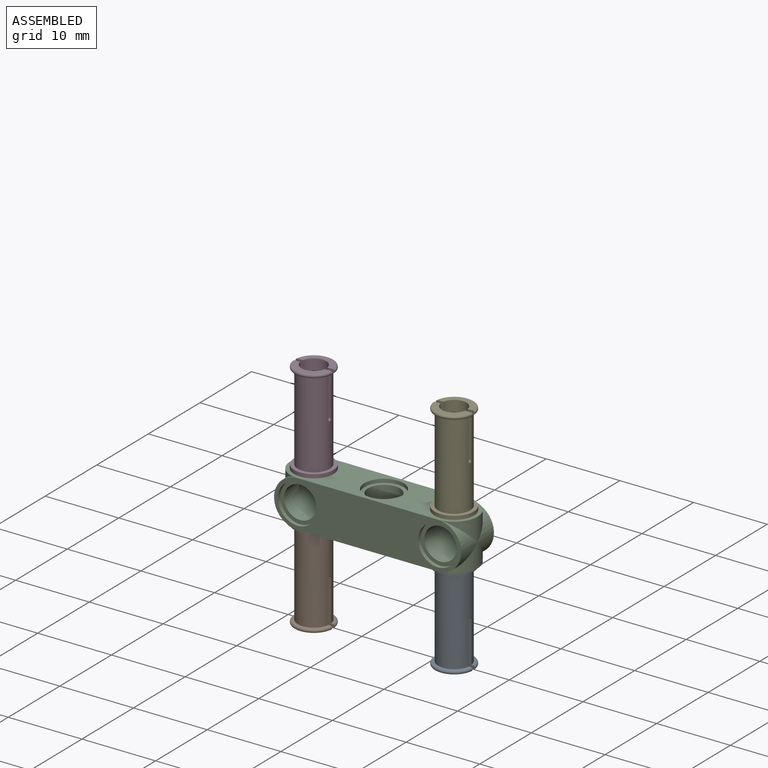
[diagram: assembled view]
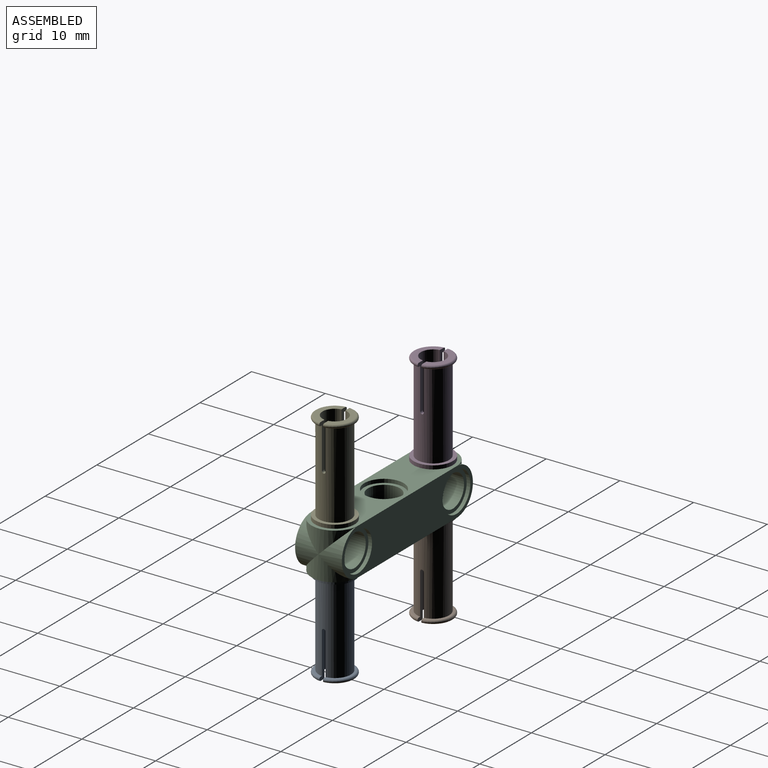
[diagram: assembled view, second angle]
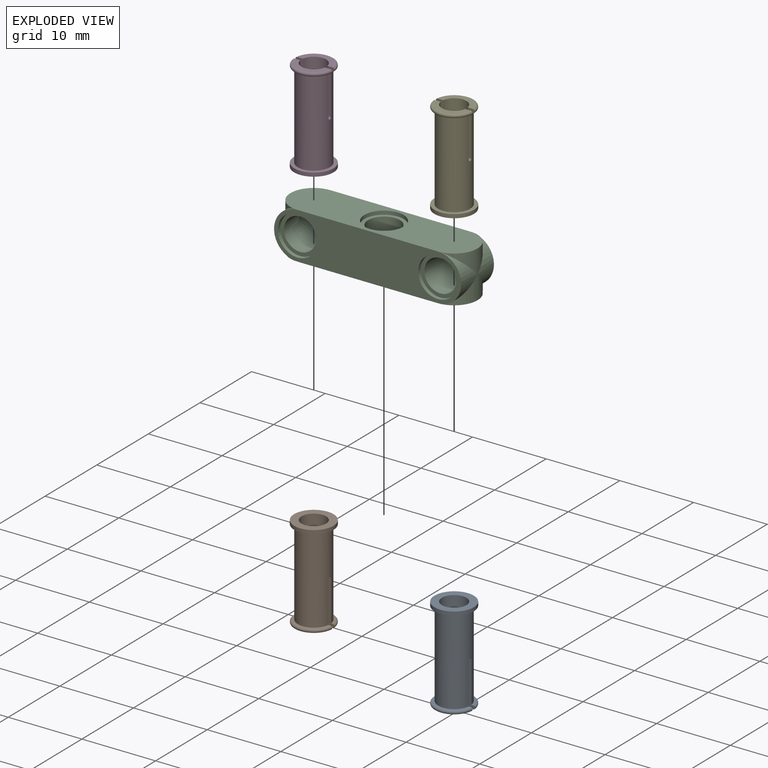
[diagram: exploded view]
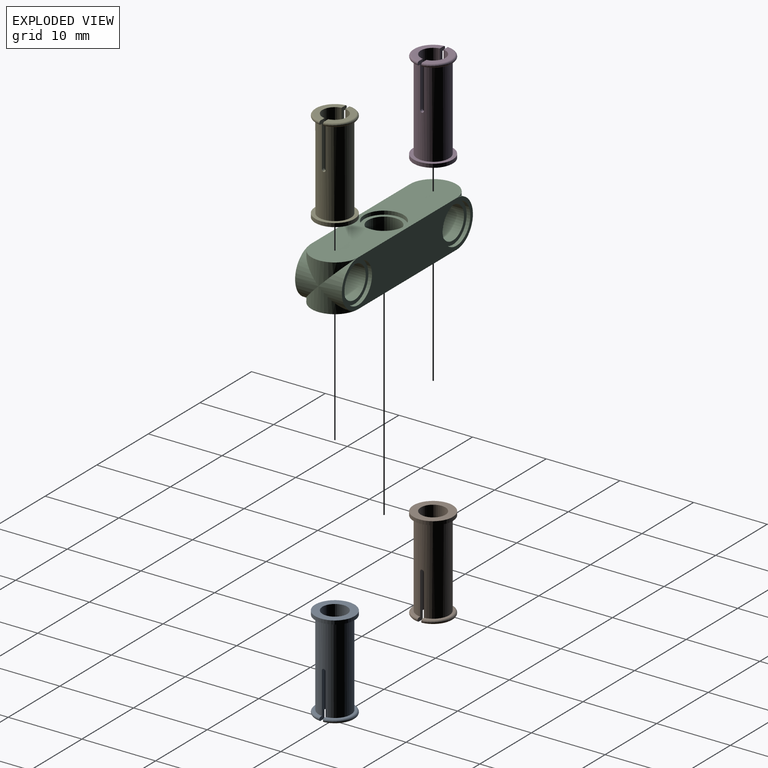
[diagram: exploded view, second angle]
ASSEMBLY  parts=5 mates=8
PART A: 21 faces, bbox 5.8x5.8x12.7 mm
  f0: plane 4.82x2.18mm, normal (0,0,1), area 4.5mm2, adj f2,f8,f11,f20
  f1: plane 4.82x2.18mm, normal (0,0,-1), area 1.7mm2, adj f2,f3,f11,f20
  f2: torus R=2.43mm, axis (0,0,1), area 6mm2, adj f0,f1,f11,f20
  f3: cylinder r=2.17mm len=11.7mm, axis (0,0,-1), area 154.1mm2, adj f1,f5,f9,f11,f12,f13,f14,f15
  f4: cylinder r=2.67mm len=5.35mm, axis (0,0,-1), area 8.4mm2, adj f5,f6
  f5: plane 5.35x5.35mm, normal (0,0,1), area 7.6mm2, adj f3,f4
  f6: plane 5.35x5.35mm, normal (0,0,-1), area 13.7mm2, adj f4,f8
  f7: plane 4.82x2.18mm, normal (0,0,1), area 4.5mm2, adj f8,f10,f12,f19
  f8: cylinder r=1.68mm len=12.7mm, axis (0,0,1), area 127.3mm2, adj f0,f6,f7,f11,f12,f13,f14,f15
  f9: plane 4.82x2.18mm, normal (0,0,-1), area 1.7mm2, adj f3,f10,f12,f19
  f10: torus R=2.43mm, axis (0,0,1), area 6mm2, adj f7,f9,f12,f19
  f11: plane 6.1x1.01mm, normal (0,1,0), area 3.3mm2, adj f0,f1,f2,f3,f8,f15
  f12: plane 6.1x1.01mm, normal (0,-1,0), area 3.3mm2, adj f3,f7,f8,f9,f10,f13
  f13: plane 0.51x0.01mm, normal (0,0,1), area 0mm2, adj f3,f8,f12,f14
  f14: cylinder r=0.24mm len=0.52mm, axis (1,0,0), area 0.4mm2, adj f3,f8,f13,f15
  f15: plane 0.51x0.01mm, normal (0,0,1), area 0mm2, adj f3,f8,f11,f14
  f16: plane 0.51x0.01mm, normal (0,0,1), area 0mm2, adj f3,f8,f17,f20
  f17: cylinder r=0.24mm len=0.52mm, axis (1,0,0), area 0.4mm2, adj f3,f8,f16,f18
  f18: plane 0.51x0.01mm, normal (0,0,1), area 0mm2, adj f3,f8,f17,f19
  f19: plane 6.1x1.01mm, normal (0,-1,0), area 3.3mm2, adj f3,f7,f8,f9,f10,f18
  f20: plane 6.1x1.01mm, normal (0,1,0), area 3.3mm2, adj f0,f1,f2,f3,f8,f16
PART B: same geometry as A
PART C: 27 faces, bbox 25.4x6.4x6.4 mm
  f0: cylinder r=3.17mm len=6.35mm, axis (0,-1,0), area 11.5mm2, adj f3,f10,f11
  f1: cylinder r=3.17mm len=6.35mm, axis (0,1,0), area 11.5mm2, adj f2,f8,f9
  f2: plane 25.4x6.35mm, normal (0,1,0), area 107.7mm2, adj f1,f4,f5,f7,f12,f14
  f3: plane 25.4x6.35mm, normal (0,-1,0), area 107.7mm2, adj f0,f4,f5,f6,f16,f18
  f4: plane 25.4x6.35mm, normal (0,0,1), area 130.2mm2, adj f2,f3,f8,f10,f22
  f5: plane 25.4x6.35mm, normal (0,0,-1), area 130.2mm2, adj f2,f3,f9,f11,f24
  f6: cylinder r=3.17mm len=6.35mm, axis (0,1,0), area 11.5mm2, adj f3,f8,f9
  f7: cylinder r=3.17mm len=6.35mm, axis (0,-1,0), area 11.5mm2, adj f2,f10,f11
  f8: cylinder r=3.17mm len=6.35mm, axis (0,0,1), area 11.5mm2, adj f1,f4,f6
  f9: cylinder r=3.17mm len=6.35mm, axis (0,0,1), area 11.5mm2, adj f1,f5,f6
  f10: cylinder r=3.17mm len=6.35mm, axis (0,0,1), area 11.5mm2, adj f0,f4,f7
  f11: cylinder r=3.17mm len=6.35mm, axis (0,0,1), area 11.5mm2, adj f0,f5,f7
  f12: cylinder r=2.67mm len=5.35mm, axis (0,1,0), area 8.4mm2, adj f2,f13
  f13: plane 5.35x5.35mm, normal (0,1,0), area 7.6mm2, adj f12,f21
  f14: cylinder r=2.67mm len=5.35mm, axis (0,1,0), area 8.4mm2, adj f2,f15
  f15: plane 5.35x5.35mm, normal (0,1,0), area 7.6mm2, adj f14,f20
  f16: cylinder r=2.67mm len=5.35mm, axis (0,-1,0), area 8.4mm2, adj f3,f17
  f17: plane 5.35x5.35mm, normal (0,-1,0), area 7.6mm2, adj f16,f21
  f18: cylinder r=2.67mm len=5.35mm, axis (0,-1,0), area 8.4mm2, adj f3,f19
  f19: plane 5.35x5.35mm, normal (0,-1,0), area 7.6mm2, adj f18,f20
  f20: cylinder r=2.17mm len=5.35mm, axis (0,1,0), area 73.1mm2, adj f15,f19
  f21: cylinder r=2.17mm len=5.35mm, axis (0,1,0), area 73.1mm2, adj f13,f17
  f22: cylinder r=2.67mm len=5.35mm, axis (0,0,1), area 8.4mm2, adj f4,f23
  f23: plane 5.35x5.35mm, normal (0,0,1), area 7.6mm2, adj f22,f26
  f24: cylinder r=2.67mm len=5.35mm, axis (0,0,-1), area 8.4mm2, adj f5,f25
  f25: plane 5.35x5.35mm, normal (0,0,-1), area 7.6mm2, adj f24,f26
  f26: cylinder r=2.17mm len=5.35mm, axis (0,0,-1), area 73.1mm2, adj f23,f25
PART D: same geometry as A
PART E: same geometry as A
PLACE A rot(axis=(0,1,0),180deg) t=(9.53,0,-8.89)mm
PLACE B rot(axis=(1,0,0),180deg) t=(-9.53,0,-8.89)mm
PLACE C rot(axis=(0.03,0,1),0deg) t=(0,0,-8.89)mm
PLACE D t=(-9.53,0,-2.54)mm
PLACE E t=(9.53,0,-2.54)mm
MATE cylindrical C.f10 <-> A.f2  axis (0,0,1) through (9.53,0,-5.7)mm
MATE cylindrical B.f2 <-> C.f8  axis (0,0,1) through (-9.53,0,-8.89)mm
MATE planar C.f22 <-> D.f2  axis (0,0,1) through (0,0,-2.54)mm
MATE planar E.f2 <-> C.f22  axis (0,0,-1) through (9.53,0,-2.54)mm
MATE cylindrical C.f10 <-> E.f2  axis (0,0,1) through (9.53,0,-7.29)mm
MATE planar B.f2 <-> C.f24  axis (0,0,1) through (-9.53,0,-8.89)mm
MATE planar A.f2 <-> C.f24  axis (0,0,1) through (9.53,0,-8.89)mm
MATE cylindrical C.f8 <-> D.f2  axis (0,0,1) through (-9.53,0,-7.29)mm
